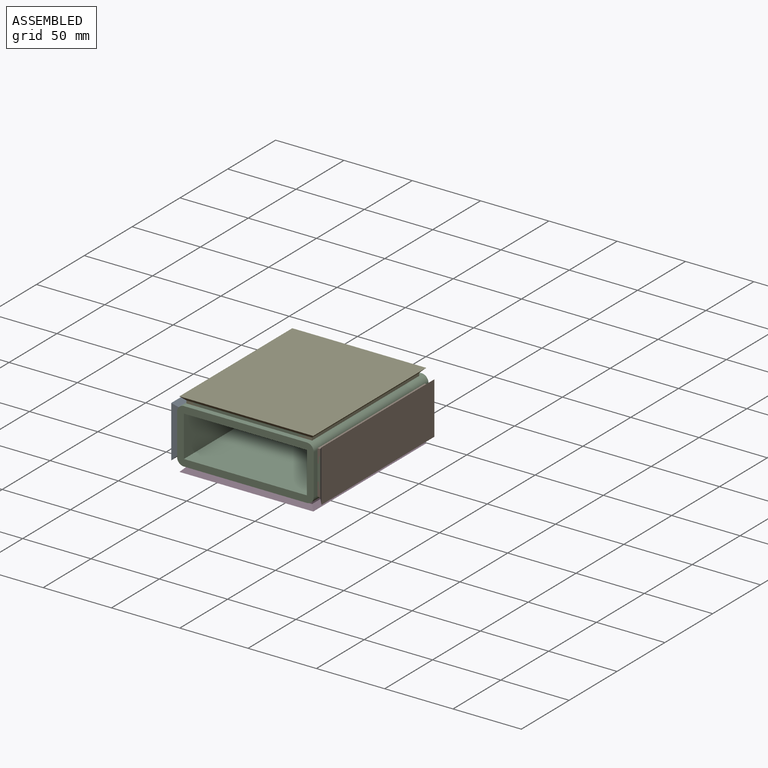
[diagram: assembled view]
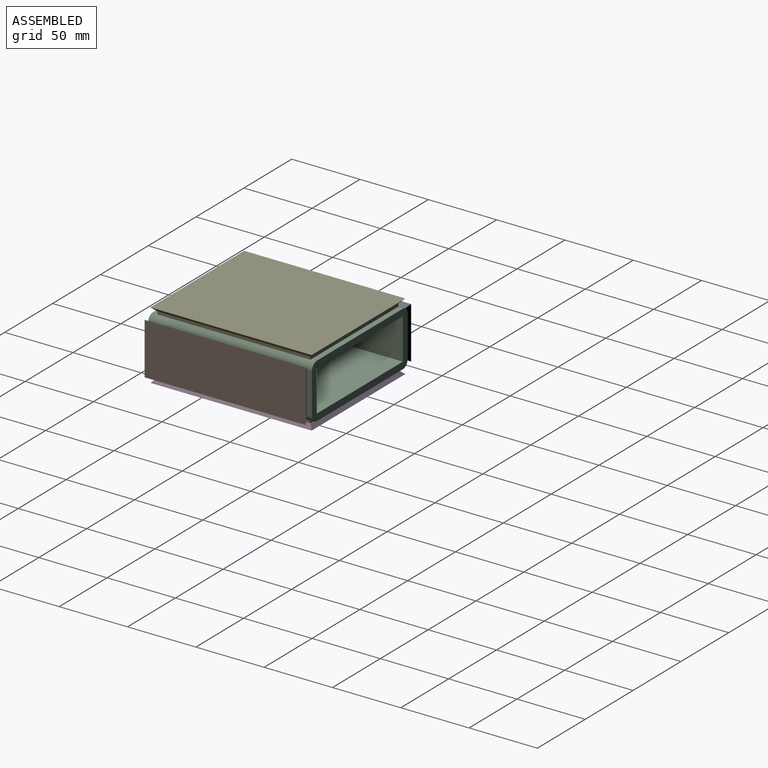
[diagram: assembled view, second angle]
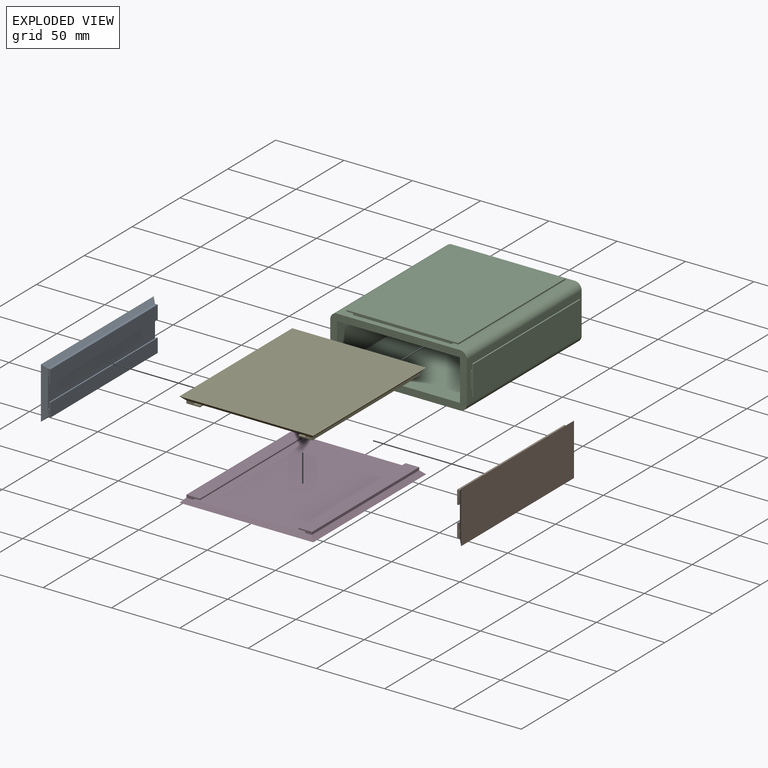
[diagram: exploded view]
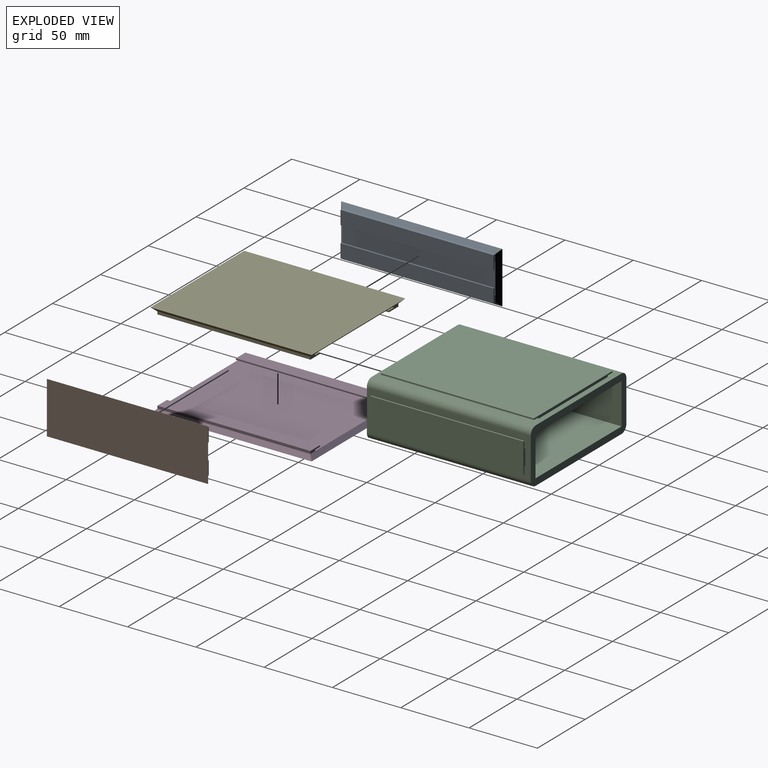
[diagram: exploded view, second angle]
ASSEMBLY  parts=5 mates=4
PART A: 20 faces, bbox 5x118x38 mm
  f0: plane 112x22mm, normal (1,0,0), area 2464mm2, adj f2,f5,f9,f12
  f1: plane 118x38mm, normal (-1,0,0), area 4484mm2, adj f2,f3,f4,f5
  f2: plane 38x3mm, normal (0.71,-0.71,0), area 148.5mm2, adj f0,f1,f3,f4,f6,f11
  f3: plane 118x3mm, normal (0.71,0,0.71), area 487.9mm2, adj f1,f2,f5,f7
  f4: plane 118x3mm, normal (0.71,0,-0.71), area 487.9mm2, adj f1,f2,f5,f14
  f5: plane 38x3mm, normal (0.71,0.71,0), area 148.5mm2, adj f0,f1,f3,f4,f8,f13
  f6: plane 10x2mm, normal (0,-1,0), area 15mm2, adj f2,f7,f9,f10,f16,f17
  f7: plane 112x2mm, normal (0,0,1), area 224mm2, adj f3,f6,f8,f10
  f8: plane 10x2mm, normal (0,1,0), area 15mm2, adj f5,f7,f9,f10,f16,f17
  f9: plane 112x1mm, normal (0,0,-1), area 112mm2, adj f0,f6,f8,f16
  f10: plane 112x10mm, normal (1,0,0), area 1120mm2, adj f6,f7,f8,f17
  f11: plane 10x2mm, normal (0,-1,0), area 15mm2, adj f2,f12,f14,f15,f18,f19
  f12: plane 112x1mm, normal (0,0,1), area 112mm2, adj f0,f11,f13,f18
  f13: plane 10x2mm, normal (0,1,0), area 15mm2, adj f5,f12,f14,f15,f18,f19
  f14: plane 112x2mm, normal (0,0,-1), area 224mm2, adj f4,f11,f13,f15
  f15: plane 112x10mm, normal (1,0,0), area 1120mm2, adj f11,f13,f14,f19
  f16: plane 112x5mm, normal (-1,0,0), area 560mm2, adj f6,f8,f9,f17
  f17: plane 112x1mm, normal (0,0,-1), area 112mm2, adj f6,f8,f10,f16
  f18: plane 112x5mm, normal (-1,0,0), area 560mm2, adj f11,f12,f13,f19
  f19: plane 112x1mm, normal (0,0,1), area 112mm2, adj f11,f13,f15,f18
PART B: 20 faces, bbox 5x118x38 mm
  f0: plane 112x22mm, normal (-1,0,0), area 2464mm2, adj f2,f5,f7,f11
  f1: plane 118x38mm, normal (1,0,0), area 4484mm2, adj f2,f3,f4,f5
  f2: plane 38x3mm, normal (-0.71,-0.71,0), area 148.5mm2, adj f0,f1,f3,f4,f8,f14
  f3: plane 118x3mm, normal (-0.71,0,0.71), area 487.9mm2, adj f1,f2,f5,f9
  f4: plane 118x3mm, normal (-0.71,0,-0.71), area 487.9mm2, adj f1,f2,f5,f13
  f5: plane 38x3mm, normal (-0.71,0.71,0), area 148.5mm2, adj f0,f1,f3,f4,f6,f12
  f6: plane 10x2mm, normal (0,1,0), area 15mm2, adj f5,f7,f9,f10,f16,f17
  f7: plane 112x1mm, normal (0,0,-1), area 112mm2, adj f0,f6,f8,f16
  f8: plane 10x2mm, normal (0,-1,0), area 15mm2, adj f2,f7,f9,f10,f16,f17
  f9: plane 112x2mm, normal (0,0,1), area 224mm2, adj f3,f6,f8,f10
  f10: plane 112x10mm, normal (-1,0,0), area 1120mm2, adj f6,f8,f9,f17
  f11: plane 112x1mm, normal (0,0,1), area 112mm2, adj f0,f12,f14,f18
  f12: plane 10x2mm, normal (0,1,0), area 15mm2, adj f5,f11,f13,f15,f18,f19
  f13: plane 112x2mm, normal (0,0,-1), area 224mm2, adj f4,f12,f14,f15
  f14: plane 10x2mm, normal (0,-1,0), area 15mm2, adj f2,f11,f13,f15,f18,f19
  f15: plane 112x10mm, normal (-1,0,0), area 1120mm2, adj f12,f13,f14,f19
  f16: plane 112x5mm, normal (1,0,0), area 560mm2, adj f6,f7,f8,f17
  f17: plane 112x1mm, normal (0,0,-1), area 112mm2, adj f6,f8,f10,f16
  f18: plane 112x5mm, normal (1,0,0), area 560mm2, adj f11,f12,f14,f19
  f19: plane 112x1mm, normal (0,0,1), area 112mm2, adj f12,f14,f15,f18
PART C: 50 faces, bbox 104x120x44 mm
  f0: plane 100x40mm, normal (0,-1,0), area 1278.5mm2, adj f3,f9,f10,f11,f42,f43,f44,f45
  f1: plane 100x40mm, normal (0,1,0), area 1278.5mm2, adj f3,f9,f10,f11,f42,f43,f44,f45
  f2: plane 112x1mm, normal (0,0,1), area 112mm2, adj f3,f35,f36,f40
  f3: plane 120x30mm, normal (-1,0,0), area 2256mm2, adj f0,f1,f2,f34,f35,f36,f43,f45
  f4: plane 112x1mm, normal (-1,0,0), area 112mm2, adj f10,f26,f28,f32
  f5: plane 112x1mm, normal (0,0,-1), area 112mm2, adj f9,f19,f20,f24
  f6: plane 112x1mm, normal (0,0,1), area 112mm2, adj f9,f19,f20,f22
  f7: plane 112x1mm, normal (-1,0,0), area 112mm2, adj f11,f12,f13,f17
  f8: plane 112x1mm, normal (1,0,0), area 112mm2, adj f11,f12,f13,f15
  f9: plane 120x30mm, normal (1,0,0), area 2256mm2, adj f0,f1,f5,f6,f19,f20,f42,f44
  f10: plane 120x90mm, normal (0,0,1), area 2736mm2, adj f0,f1,f4,f26,f27,f28,f44,f45
  f11: plane 120x90mm, normal (0,0,-1), area 2736mm2, adj f0,f1,f7,f8,f12,f13,f42,f43
  f12: plane 82x2mm, normal (0,-1,0), area 154mm2, adj f7,f8,f11,f14,f15,f16,f17,f18
  f13: plane 82x2mm, normal (0,1,0), area 154mm2, adj f7,f8,f11,f14,f15,f16,f17,f18
  f14: plane 112x82mm, normal (0,0,-1), area 9184mm2, adj f12,f13,f16,f18
  f15: plane 112x5mm, normal (0,0,1), area 560mm2, adj f8,f12,f13,f16
  f16: plane 112x1mm, normal (1,0,0), area 112mm2, adj f12,f13,f14,f15
  f17: plane 112x5mm, normal (0,0,1), area 560mm2, adj f7,f12,f13,f18
  f18: plane 112x1mm, normal (-1,0,0), area 112mm2, adj f12,f13,f14,f17
  f19: plane 22x2mm, normal (0,-1,0), area 34mm2, adj f5,f6,f9,f21,f22,f23,f24,f25
  f20: plane 22x2mm, normal (0,1,0), area 34mm2, adj f5,f6,f9,f21,f22,f23,f24,f25
  f21: plane 112x22mm, normal (1,0,0), area 2464mm2, adj f19,f20,f23,f25
  f22: plane 112x5mm, normal (-1,0,0), area 560mm2, adj f6,f19,f20,f23
  f23: plane 112x1mm, normal (0,0,1), area 112mm2, adj f19,f20,f21,f22
  f24: plane 112x5mm, normal (-1,0,0), area 560mm2, adj f5,f19,f20,f25
  f25: plane 112x1mm, normal (0,0,-1), area 112mm2, adj f19,f20,f21,f24
  f26: plane 82x2mm, normal (0,-1,0), area 154mm2, adj f4,f10,f27,f29,f30,f31,f32,f33
  f27: plane 112x1mm, normal (1,0,0), area 112mm2, adj f10,f26,f28,f30
  f28: plane 82x2mm, normal (0,1,0), area 154mm2, adj f4,f10,f27,f29,f30,f31,f32,f33
  f29: plane 112x82mm, normal (0,0,1), area 9184mm2, adj f26,f28,f31,f33
  f30: plane 112x5mm, normal (0,0,-1), area 560mm2, adj f26,f27,f28,f31
  f31: plane 112x1mm, normal (1,0,0), area 112mm2, adj f26,f28,f29,f30
  f32: plane 112x5mm, normal (0,0,-1), area 560mm2, adj f4,f26,f28,f33
  f33: plane 112x1mm, normal (-1,0,0), area 112mm2, adj f26,f28,f29,f32
  f34: plane 112x1mm, normal (0,0,-1), area 112mm2, adj f3,f35,f36,f38
  f35: plane 22x2mm, normal (0,-1,0), area 34mm2, adj f2,f3,f34,f37,f38,f39,f40,f41
  f36: plane 22x2mm, normal (0,1,0), area 34mm2, adj f2,f3,f34,f37,f38,f39,f40,f41
  f37: plane 112x22mm, normal (-1,0,0), area 2464mm2, adj f35,f36,f39,f41
  f38: plane 112x5mm, normal (1,0,0), area 560mm2, adj f34,f35,f36,f39
  f39: plane 112x1mm, normal (0,0,-1), area 112mm2, adj f35,f36,f37,f38
  f40: plane 112x5mm, normal (1,0,0), area 560mm2, adj f2,f35,f36,f41
  f41: plane 112x1mm, normal (0,0,1), area 112mm2, adj f35,f36,f37,f40
  f42: cylinder r=5mm len=120mm, axis (0,1,0), area 942.5mm2, adj f0,f1,f9,f11
  f43: cylinder r=5mm len=120mm, axis (0,-1,0), area 942.5mm2, adj f0,f1,f3,f11
  f44: cylinder r=5mm len=120mm, axis (0,-1,0), area 942.5mm2, adj f0,f1,f9,f10
  f45: cylinder r=5mm len=120mm, axis (0,1,0), area 942.5mm2, adj f0,f1,f3,f10
  f46: plane 120x30mm, normal (-1,0,0), area 3600mm2, adj f0,f1,f47,f49
  f47: plane 120x90mm, normal (0,0,-1), area 10800mm2, adj f0,f1,f46,f48
  f48: plane 120x30mm, normal (1,0,0), area 3600mm2, adj f0,f1,f47,f49
  f49: plane 120x90mm, normal (0,0,1), area 10800mm2, adj f0,f1,f46,f48
PART D: 20 faces, bbox 98x118x5 mm
  f0: plane 112x1mm, normal (1,0,0), area 112mm2, adj f1,f7,f9,f16
  f1: plane 112x82mm, normal (0,0,1), area 9184mm2, adj f0,f4,f5,f12
  f2: plane 118x98mm, normal (0,0,-1), area 11564mm2, adj f3,f4,f5,f6
  f3: plane 118x3mm, normal (-0.71,0,0.71), area 487.9mm2, adj f2,f4,f5,f8
  f4: plane 98x3mm, normal (0,-0.71,0.71), area 403.1mm2, adj f1,f2,f3,f6,f9,f13
  f5: plane 98x3mm, normal (0,0.71,0.71), area 403.1mm2, adj f1,f2,f3,f6,f7,f11
  f6: plane 118x3mm, normal (0.71,0,0.71), area 487.9mm2, adj f2,f4,f5,f14
  f7: plane 10x2mm, normal (0,1,0), area 15mm2, adj f0,f5,f8,f10,f16,f17
  f8: plane 112x2mm, normal (-1,0,0), area 224mm2, adj f3,f7,f9,f10
  f9: plane 10x2mm, normal (0,-1,0), area 15mm2, adj f0,f4,f8,f10,f16,f17
  f10: plane 112x10mm, normal (0,0,1), area 1120mm2, adj f7,f8,f9,f17
  f11: plane 10x2mm, normal (0,1,0), area 15mm2, adj f5,f12,f14,f15,f18,f19
  f12: plane 112x1mm, normal (-1,0,0), area 112mm2, adj f1,f11,f13,f18
  f13: plane 10x2mm, normal (0,-1,0), area 15mm2, adj f4,f12,f14,f15,f18,f19
  f14: plane 112x2mm, normal (1,0,0), area 224mm2, adj f6,f11,f13,f15
  f15: plane 112x10mm, normal (0,0,1), area 1120mm2, adj f11,f13,f14,f19
  f16: plane 112x5mm, normal (0,0,-1), area 560mm2, adj f0,f7,f9,f17
  f17: plane 112x1mm, normal (1,0,0), area 112mm2, adj f7,f9,f10,f16
  f18: plane 112x5mm, normal (0,0,-1), area 560mm2, adj f11,f12,f13,f19
  f19: plane 112x1mm, normal (-1,0,0), area 112mm2, adj f11,f13,f15,f18
PART E: same geometry as D
PLACE A rot(axis=(0,0,1),0deg) t=(23,0,-5)mm
PLACE B rot(axis=(-1,0,0),0deg) t=(-23,0,-5)mm
PLACE C t=(0,0,-5)mm
PLACE D rot(axis=(0,0,1),0deg) t=(0,0,23)mm
PLACE E rot(axis=(1,0,0),180deg) t=(0,0,7)mm
MATE parallel B.f1 <-> C.f21  axis (1,0,0) through (55,0,15)mm
MATE parallel A.f1 <-> C.f37  axis (-1,0,0) through (-55,0,15)mm
MATE parallel C.f29 <-> E.f2  axis (0,0,1) through (0,0,37)mm
MATE parallel C.f14 <-> D.f2  axis (0,0,-1) through (0,0,-7)mm
